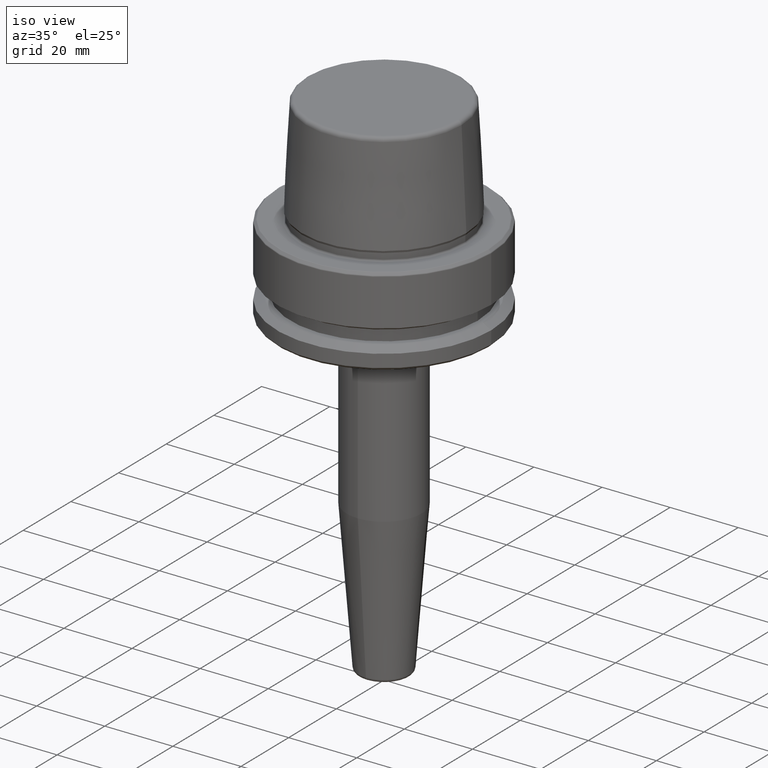
[diagram: clean part render]
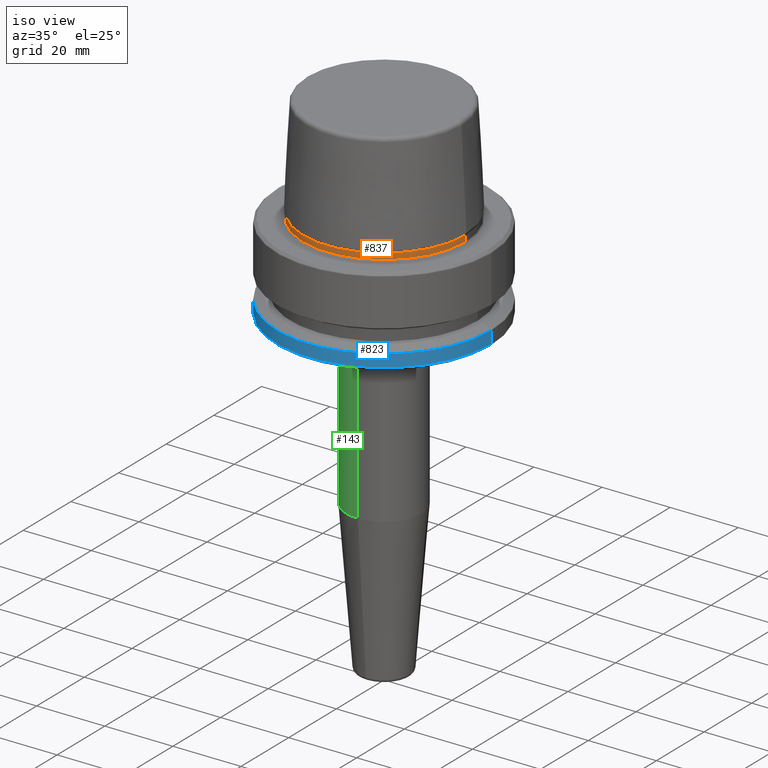
[diagram: same view with three faces highlighted in distinct colors, each labeled with its STEP entity id]
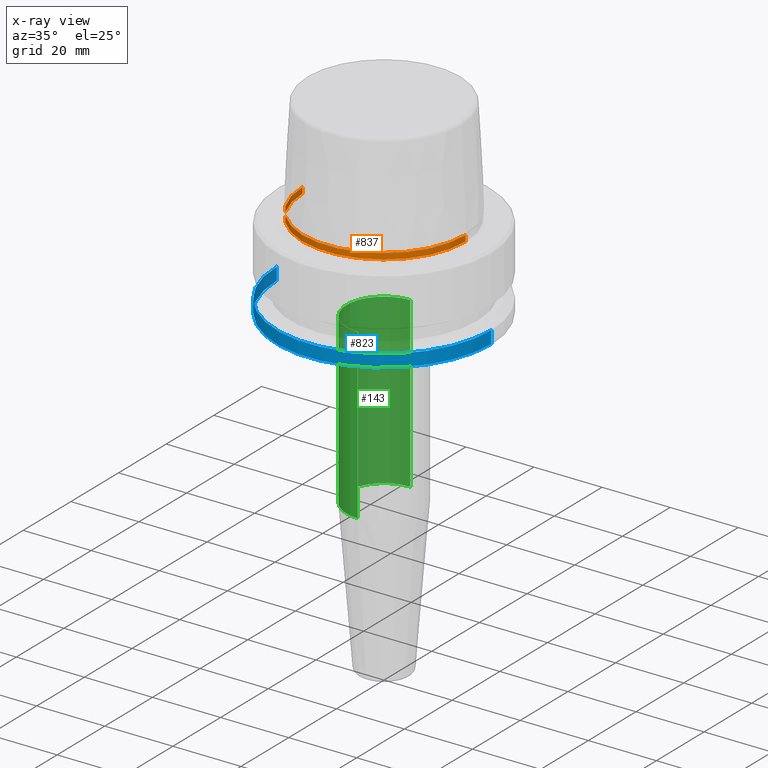
[diagram: x-ray of the same camera — body ghosted, the three highlighted faces saturated]
A machine part, iso view with three faces highlighted in distinct colors.
The next image is the same camera in x-ray (body ghosted, the three faces saturated) — at least one of them is partly hidden behind the body in this view.
Their STEP definitions:

[orange] entity #837 — the highlighted cylindrical surface (partial cylindrical patch) has radius 23.89 mm, axis along (-0, -0, 1).
#82 = DIRECTION ( 'NONE',  ( 1.000000000000000000, 0.0000000000000000000, 0.0000000000000000000 ) ) ;
#102 = VECTOR ( 'NONE', #750, 1000.000000000000000 ) ;
#103 = ORIENTED_EDGE ( 'NONE', *, *, #1185, .F. ) ;
#130 = CARTESIAN_POINT ( 'NONE',  ( -23.89000000000000100, 2.944380070784114200E-015, 1.845119734979375100 ) ) ;
#151 = VECTOR ( 'NONE', #873, 1000.000000000000000 ) ;
#156 = AXIS2_PLACEMENT_3D ( 'NONE', #727, #1115, #545 ) ;
#273 = ORIENTED_EDGE ( 'NONE', *, *, #1081, .F. ) ;
#315 = CIRCLE ( 'NONE', #885, 23.89000000000000400 ) ;
#321 = VERTEX_POINT ( 'NONE', #130 ) ;
#338 = EDGE_CURVE ( 'NONE', #614, #813, #315, .T. ) ;
#383 = VERTEX_POINT ( 'NONE', #784 ) ;
#386 = CARTESIAN_POINT ( 'NONE',  ( -23.89000000000000100, 2.925681203163027000E-015, 78.96908074195309300 ) ) ;
#387 = CARTESIAN_POINT ( 'NONE',  ( 0.0000000000000000000, 0.0000000000000000000, 0.1312552021302954000 ) ) ;
#407 = CARTESIAN_POINT ( 'NONE',  ( 0.0000000000000000000, 0.0000000000000000000, 1.845119734979375100 ) ) ;
#416 = ORIENTED_EDGE ( 'NONE', *, *, #932, .T. ) ;
#437 = CARTESIAN_POINT ( 'NONE',  ( 23.89000000000000400, 0.0000000000000000000, 0.1312552021302954000 ) ) ;
#444 = LINE ( 'NONE', #386, #151 ) ;
#504 = DIRECTION ( 'NONE',  ( 1.000000000000000000, 0.0000000000000000000, 0.0000000000000000000 ) ) ;
#545 = DIRECTION ( 'NONE',  ( 1.000000000000000000, 0.0000000000000000000, 0.0000000000000000000 ) ) ;
#614 = VERTEX_POINT ( 'NONE', #1053 ) ;
#623 = ORIENTED_EDGE ( 'NONE', *, *, #338, .T. ) ;
#687 = FACE_OUTER_BOUND ( 'NONE', #806, .T. ) ;
#721 = AXIS2_PLACEMENT_3D ( 'NONE', #407, #1075, #504 ) ;
#727 = CARTESIAN_POINT ( 'NONE',  ( 0.0000000000000000000, 0.0000000000000000000, 78.96908074195309300 ) ) ;
#750 = DIRECTION ( 'NONE',  ( -0.0000000000000000000, -0.0000000000000000000, 1.000000000000000000 ) ) ;
#784 = CARTESIAN_POINT ( 'NONE',  ( 23.89000000000000100, 0.0000000000000000000, 1.845119734979375100 ) ) ;
#805 = CIRCLE ( 'NONE', #721, 23.89000000000000100 ) ;
#806 = EDGE_LOOP ( 'NONE', ( #273, #623, #416, #103 ) ) ;
#813 = VERTEX_POINT ( 'NONE', #437 ) ;
#837 = ADVANCED_FACE ( 'NONE', ( #687 ), #887, .T. ) ;
#848 = CARTESIAN_POINT ( 'NONE',  ( 23.89000000000000100, 0.0000000000000000000, 78.96908074195309300 ) ) ;
#873 = DIRECTION ( 'NONE',  ( -0.0000000000000000000, -0.0000000000000000000, 1.000000000000000000 ) ) ;
#885 = AXIS2_PLACEMENT_3D ( 'NONE', #387, #1082, #82 ) ;
#887 = CYLINDRICAL_SURFACE ( 'NONE', #156, 23.89000000000000100 ) ;
#932 = EDGE_CURVE ( 'NONE', #813, #383, #1071, .T. ) ;
#1053 = CARTESIAN_POINT ( 'NONE',  ( -23.89000000000000400, 2.961613815265650600E-015, 0.1312552021302954000 ) ) ;
#1071 = LINE ( 'NONE', #848, #102 ) ;
#1075 = DIRECTION ( 'NONE',  ( -0.0000000000000000000, -0.0000000000000000000, 1.000000000000000000 ) ) ;
#1081 = EDGE_CURVE ( 'NONE', #614, #321, #444, .T. ) ;
#1082 = DIRECTION ( 'NONE',  ( -0.0000000000000000000, -0.0000000000000000000, 1.000000000000000000 ) ) ;
#1115 = DIRECTION ( 'NONE',  ( -0.0000000000000000000, -0.0000000000000000000, 1.000000000000000000 ) ) ;
#1185 = EDGE_CURVE ( 'NONE', #321, #383, #805, .T. ) ;

[blue] entity #823 — the highlighted cylindrical surface (partial cylindrical patch) has radius 31.5 mm, axis along (-0, -0, 1).
#19 = AXIS2_PLACEMENT_3D ( 'NONE', #1020, #1208, #641 ) ;
#22 = DIRECTION ( 'NONE',  ( -0.0000000000000000000, -0.0000000000000000000, 1.000000000000000000 ) ) ;
#121 = EDGE_CURVE ( 'NONE', #780, #1257, #339, .T. ) ;
#133 = EDGE_LOOP ( 'NONE', ( #1033, #1061, #438, #688 ) ) ;
#167 = FACE_OUTER_BOUND ( 'NONE', #133, .T. ) ;
#210 = LINE ( 'NONE', #868, #1237 ) ;
#223 = LINE ( 'NONE', #906, #458 ) ;
#251 = CARTESIAN_POINT ( 'NONE',  ( 31.50000000000000000, 0.0000000000000000000, -21.37749907475931700 ) ) ;
#279 = DIRECTION ( 'NONE',  ( -0.0000000000000000000, -0.0000000000000000000, 1.000000000000000000 ) ) ;
#339 = CIRCLE ( 'NONE', #775, 31.50000000000000000 ) ;
#349 = DIRECTION ( 'NONE',  ( 1.000000000000000000, 0.0000000000000000000, 0.0000000000000000000 ) ) ;
#426 = CARTESIAN_POINT ( 'NONE',  ( -31.50000000000000000, 3.857637417314162700E-015, -21.37749907475931700 ) ) ;
#438 = ORIENTED_EDGE ( 'NONE', *, *, #1023, .T. ) ;
#458 = VECTOR ( 'NONE', #997, 1000.000000000000000 ) ;
#617 = CARTESIAN_POINT ( 'NONE',  ( 0.0000000000000000000, 0.0000000000000000000, -21.37749907475931700 ) ) ;
#641 = DIRECTION ( 'NONE',  ( 1.000000000000000000, 0.0000000000000000000, 0.0000000000000000000 ) ) ;
#688 = ORIENTED_EDGE ( 'NONE', *, *, #1250, .F. ) ;
#709 = DIRECTION ( 'NONE',  ( 1.000000000000000000, 0.0000000000000000000, 0.0000000000000000000 ) ) ;
#714 = CIRCLE ( 'NONE', #1232, 31.50000000000000000 ) ;
#737 = CARTESIAN_POINT ( 'NONE',  ( 0.0000000000000000000, 0.0000000000000000000, -25.03431457505077200 ) ) ;
#749 = DIRECTION ( 'NONE',  ( -0.0000000000000000000, -0.0000000000000000000, 1.000000000000000000 ) ) ;
#775 = AXIS2_PLACEMENT_3D ( 'NONE', #737, #749, #349 ) ;
#779 = VERTEX_POINT ( 'NONE', #426 ) ;
#780 = VERTEX_POINT ( 'NONE', #1200 ) ;
#823 = ADVANCED_FACE ( 'NONE', ( #167 ), #1163, .T. ) ;
#851 = VERTEX_POINT ( 'NONE', #251 ) ;
#868 = CARTESIAN_POINT ( 'NONE',  ( 31.50000000000000000, 0.0000000000000000000, 78.96908074195309300 ) ) ;
#906 = CARTESIAN_POINT ( 'NONE',  ( -31.50000000000000000, 3.857637417314162700E-015, 78.96908074195309300 ) ) ;
#997 = DIRECTION ( 'NONE',  ( -0.0000000000000000000, -0.0000000000000000000, 1.000000000000000000 ) ) ;
#1020 = CARTESIAN_POINT ( 'NONE',  ( 0.0000000000000000000, 0.0000000000000000000, 78.96908074195309300 ) ) ;
#1023 = EDGE_CURVE ( 'NONE', #1257, #851, #210, .T. ) ;
#1033 = ORIENTED_EDGE ( 'NONE', *, *, #1248, .F. ) ;
#1061 = ORIENTED_EDGE ( 'NONE', *, *, #121, .T. ) ;
#1163 = CYLINDRICAL_SURFACE ( 'NONE', #19, 31.50000000000000000 ) ;
#1184 = CARTESIAN_POINT ( 'NONE',  ( 31.50000000000000000, 0.0000000000000000000, -25.03431457505077200 ) ) ;
#1200 = CARTESIAN_POINT ( 'NONE',  ( -31.50000000000000000, 3.857637417314161900E-015, -25.03431457505077200 ) ) ;
#1208 = DIRECTION ( 'NONE',  ( -0.0000000000000000000, -0.0000000000000000000, 1.000000000000000000 ) ) ;
#1232 = AXIS2_PLACEMENT_3D ( 'NONE', #617, #22, #709 ) ;
#1237 = VECTOR ( 'NONE', #279, 1000.000000000000000 ) ;
#1248 = EDGE_CURVE ( 'NONE', #780, #779, #223, .T. ) ;
#1250 = EDGE_CURVE ( 'NONE', #779, #851, #714, .T. ) ;
#1257 = VERTEX_POINT ( 'NONE', #1184 ) ;

[green] entity #143 — the highlighted cylindrical surface (partial cylindrical patch) has radius 11 mm, axis along (-0, 0, -1).
#16 = CYLINDRICAL_SURFACE ( 'NONE', #1093, 10.99999999999999300 ) ;
#27 = AXIS2_PLACEMENT_3D ( 'NONE', #224, #1181, #1183 ) ;
#28 = ORIENTED_EDGE ( 'NONE', *, *, #1251, .F. ) ;
#35 = DIRECTION ( 'NONE',  ( -0.0000000000000000000, 5.211262975095120000E-017, -1.000000000000000000 ) ) ;
#38 = AXIS2_PLACEMENT_3D ( 'NONE', #222, #907, #314 ) ;
#48 = FACE_OUTER_BOUND ( 'NONE', #1085, .T. ) ;
#62 = CARTESIAN_POINT ( 'NONE',  ( 0.0000000000000000000, 10.99999999999999800, -120.0000000000000000 ) ) ;
#69 = VERTEX_POINT ( 'NONE', #1065 ) ;
#143 = ADVANCED_FACE ( 'NONE', ( #48 ), #16, .T. ) ;
#171 = LINE ( 'NONE', #693, #370 ) ;
#185 = EDGE_CURVE ( 'NONE', #359, #881, #280, .T. ) ;
#194 = CIRCLE ( 'NONE', #38, 10.99999999999998900 ) ;
#198 = ORIENTED_EDGE ( 'NONE', *, *, #609, .T. ) ;
#222 = CARTESIAN_POINT ( 'NONE',  ( 0.0000000000000000000, 2.581049096243009500E-015, -75.52828342338449400 ) ) ;
#224 = CARTESIAN_POINT ( 'NONE',  ( 0.0000000000000000000, 0.0000000000000000000, -26.00000000000001100 ) ) ;
#280 = CIRCLE ( 'NONE', #27, 10.99999999999999300 ) ;
#314 = DIRECTION ( 'NONE',  ( 0.0000000000000000000, 1.000000000000000000, 0.0000000000000000000 ) ) ;
#359 = VERTEX_POINT ( 'NONE', #755 ) ;
#370 = VECTOR ( 'NONE', #578, 1000.000000000000000 ) ;
#415 = CARTESIAN_POINT ( 'NONE',  ( 0.0000000000000000000, 4.898587196589412200E-015, -120.0000000000000000 ) ) ;
#488 = ORIENTED_EDGE ( 'NONE', *, *, #523, .F. ) ;
#523 = EDGE_CURVE ( 'NONE', #359, #652, #171, .T. ) ;
#541 = VECTOR ( 'NONE', #695, 1000.000000000000000 ) ;
#578 = DIRECTION ( 'NONE',  ( -0.0000000000000000000, 5.211262975095120000E-017, -1.000000000000000000 ) ) ;
#609 = EDGE_CURVE ( 'NONE', #881, #69, #1050, .T. ) ;
#652 = VERTEX_POINT ( 'NONE', #985 ) ;
#693 = CARTESIAN_POINT ( 'NONE',  ( 1.347111479062087600E-015, -10.99999999999998800, -120.0000000000000000 ) ) ;
#695 = DIRECTION ( 'NONE',  ( -0.0000000000000000000, 5.211262975095120000E-017, -1.000000000000000000 ) ) ;
#755 = CARTESIAN_POINT ( 'NONE',  ( 1.347111479062087600E-015, -10.99999999999999300, -26.00000000000001100 ) ) ;
#881 = VERTEX_POINT ( 'NONE', #1029 ) ;
#907 = DIRECTION ( 'NONE',  ( -0.0000000000000000000, 5.211262975095120000E-017, -1.000000000000000000 ) ) ;
#928 = DIRECTION ( 'NONE',  ( 0.0000000000000000000, 1.000000000000000000, 0.0000000000000000000 ) ) ;
#985 = CARTESIAN_POINT ( 'NONE',  ( 0.0000000000000000000, -10.99999999999998900, -75.52828342338449400 ) ) ;
#1029 = CARTESIAN_POINT ( 'NONE',  ( 0.0000000000000000000, 10.99999999999999300, -26.00000000000001100 ) ) ;
#1050 = LINE ( 'NONE', #62, #541 ) ;
#1065 = CARTESIAN_POINT ( 'NONE',  ( 1.347111479062087400E-015, 10.99999999999999300, -75.52828342338449400 ) ) ;
#1085 = EDGE_LOOP ( 'NONE', ( #488, #1120, #198, #28 ) ) ;
#1093 = AXIS2_PLACEMENT_3D ( 'NONE', #415, #35, #928 ) ;
#1120 = ORIENTED_EDGE ( 'NONE', *, *, #185, .T. ) ;
#1181 = DIRECTION ( 'NONE',  ( 0.0000000000000000000, 0.0000000000000000000, -1.000000000000000000 ) ) ;
#1183 = DIRECTION ( 'NONE',  ( 1.000000000000000000, 0.0000000000000000000, 0.0000000000000000000 ) ) ;
#1251 = EDGE_CURVE ( 'NONE', #652, #69, #194, .T. ) ;